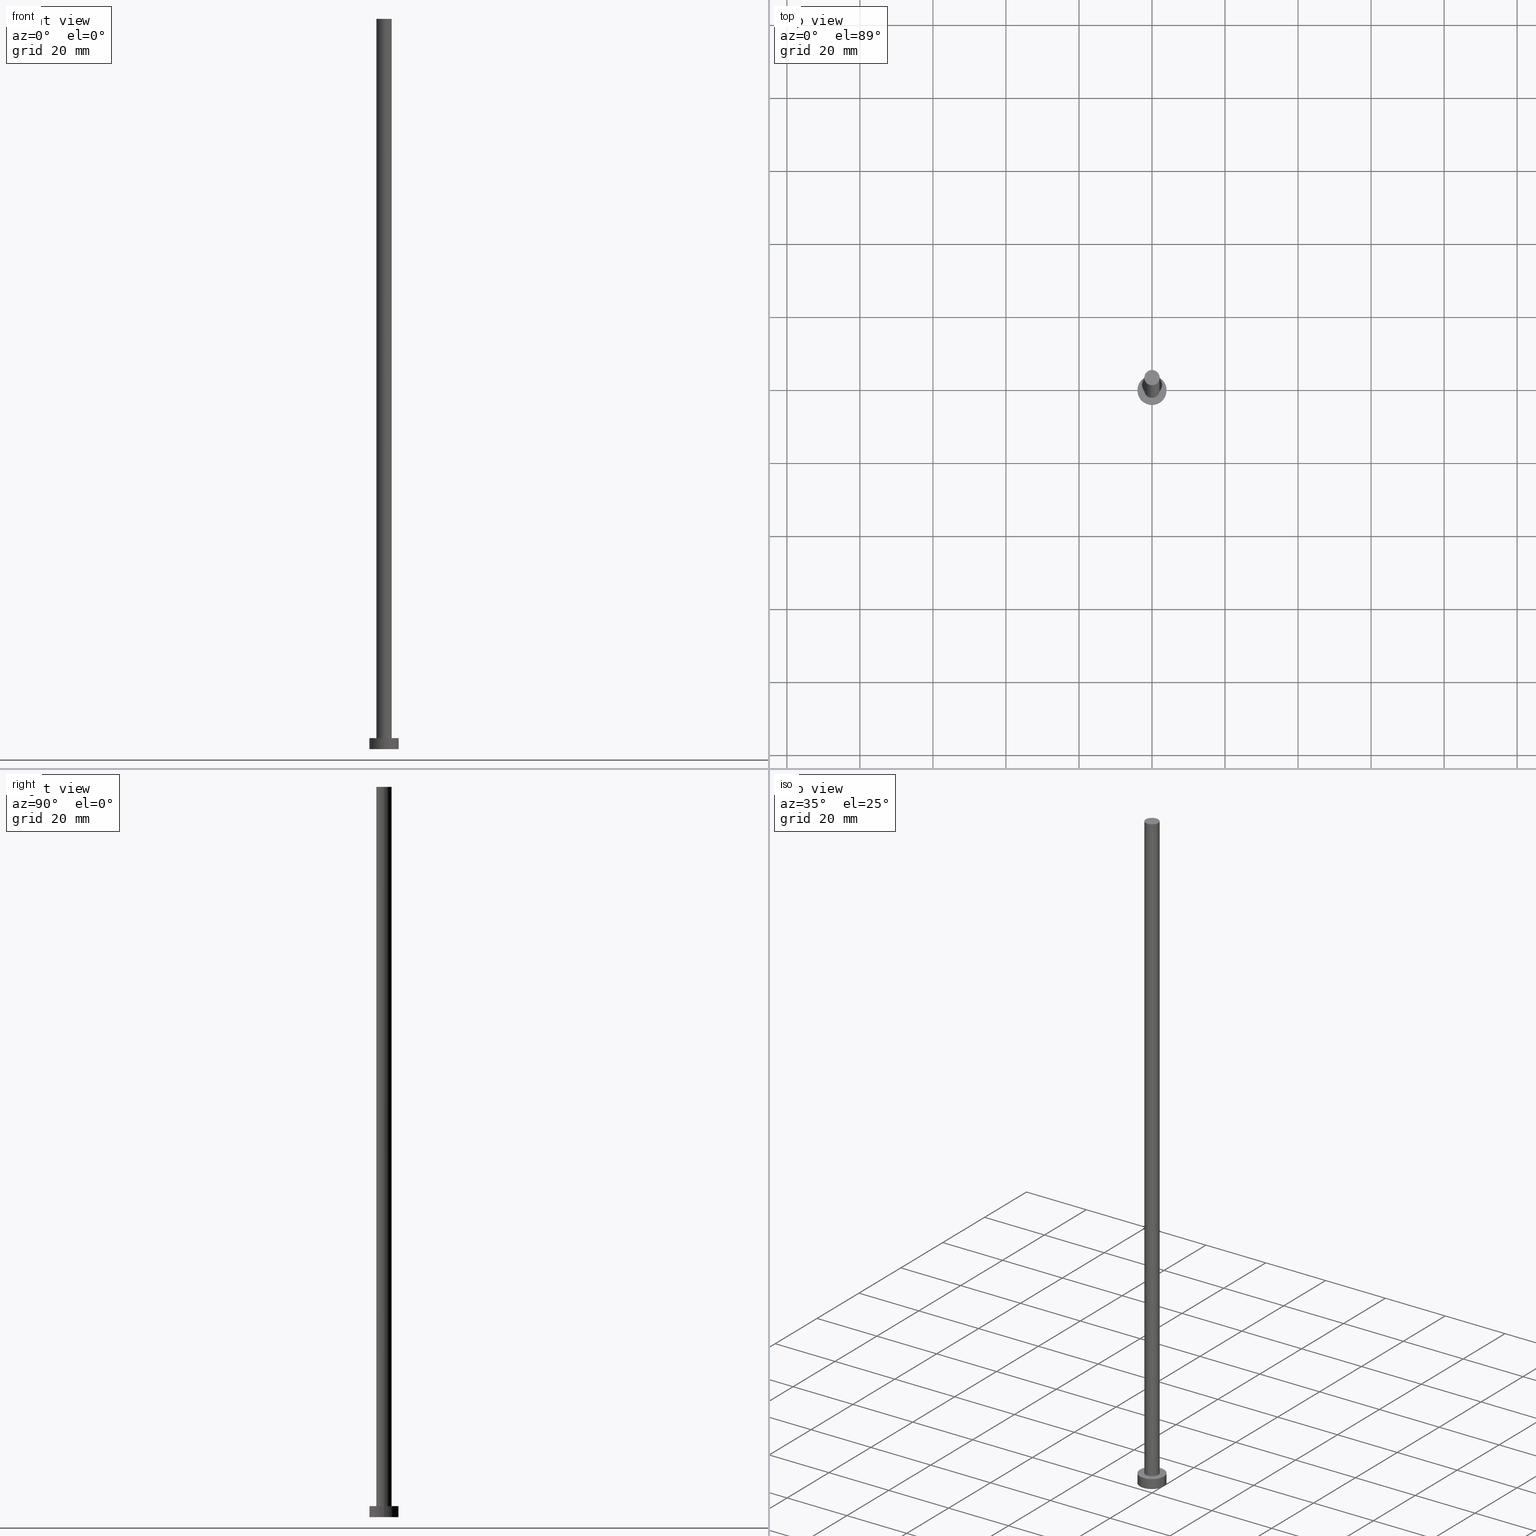
[diagram: canonical four-view strip — front | top / right | iso, engineering-drawing reading convention]
A machine part, canonical four-view strip (front | top / right | iso — engineering-drawing reading convention). The complete STEP part file that produces these views, byte-faithful:
ISO-10303-21;
HEADER;
FILE_DESCRIPTION (( 'STEP AP203' ),
    '1' );
FILE_NAME ('8169.STEP',
    '2023-02-13T13:56:14',
    ( '' ),
    ( '' ),
    'SwSTEP 2.0',
    'SolidWorks 2019',
    '' );
FILE_SCHEMA (( 'CONFIG_CONTROL_DESIGN' ));
ENDSEC;

DATA;
#1 = CARTESIAN_POINT ( 'NONE',  ( 0.000000000000000000, 0.000000000000000000, 200.0000000000000000 ) ) ;
#2 = CC_DESIGN_PERSON_AND_ORGANIZATION_ASSIGNMENT ( #145, #143, ( #218 ) ) ;
#3 = APPLICATION_PROTOCOL_DEFINITION ( 'international standard', 'config_control_design', 1994, #89 ) ;
#4 = APPLICATION_PROTOCOL_DEFINITION ( 'international standard', 'config_control_design', 1994, #95 ) ;
#5 = PERSON_AND_ORGANIZATION ( #32, #83 ) ;
#6 = AXIS2_PLACEMENT_3D ( 'NONE', #13, #173, #135 ) ;
#7 = EDGE_LOOP ( 'NONE', ( #38, #128, #46, #102 ) ) ;
#8 = PRODUCT_DEFINITION_SHAPE ( 'NONE', 'NONE',  #218 ) ;
#9 = EDGE_LOOP ( 'NONE', ( #67, #229 ) ) ;
#10 = ORIENTED_EDGE ( 'NONE', *, *, #57, .T. ) ;
#11 = DIRECTION ( 'NONE',  ( -0.000000000000000000, -0.000000000000000000, -1.000000000000000000 ) ) ;
#12 = EDGE_CURVE ( 'NONE', #186, #108, #168, .T. ) ;
#13 = CARTESIAN_POINT ( 'NONE',  ( 0.000000000000000000, 0.000000000000000000, 200.0000000000000000 ) ) ;
#14 = FACE_BOUND ( 'NONE', #230, .T. ) ;
#15 = CC_DESIGN_APPROVAL ( #115, ( #222 ) ) ;
#16 = FACE_OUTER_BOUND ( 'NONE', #88, .T. ) ;
#17 = CC_DESIGN_PERSON_AND_ORGANIZATION_ASSIGNMENT ( #53, #140, ( #222 ) ) ;
#18 = APPROVAL_ROLE ( '' ) ;
#19 =( LENGTH_UNIT ( ) NAMED_UNIT ( * ) SI_UNIT ( .MILLI., .METRE. ) );
#20 = CIRCLE ( 'NONE', #91, 4.000000000000000000 ) ;
#21 = APPROVAL_STATUS ( 'not_yet_approved' ) ;
#22 = LOCAL_TIME ( 14, 56, 14.00000000000000000, #37 ) ;
#23 = VERTEX_POINT ( 'NONE', #93 ) ;
#24 = ORIENTED_EDGE ( 'NONE', *, *, #54, .F. ) ;
#25 = CIRCLE ( 'NONE', #165, 2.100000000000000089 ) ;
#26 = ORIENTED_EDGE ( 'NONE', *, *, #244, .T. ) ;
#27 = UNCERTAINTY_MEASURE_WITH_UNIT (LENGTH_MEASURE( 1.000000000000000082E-05 ), #19, 'distance_accuracy_value', 'NONE');
#28 = VERTEX_POINT ( 'NONE', #245 ) ;
#29 = ADVANCED_FACE ( 'NONE', ( #114 ), #45, .T. ) ;
#30 = FACE_OUTER_BOUND ( 'NONE', #90, .T. ) ;
#31 = CARTESIAN_POINT ( 'NONE',  ( -4.000000000000000000, 0.000000000000000000, 0.000000000000000000 ) ) ;
#32 = PERSON ( 'NEUR�EN�', 'NEUR�EN�', 'NEUR�EN�', ('NEUR�EN�'), ('NEUR�EN�'), ('NEUR�EN�') ) ;
#33 = CARTESIAN_POINT ( 'NONE',  ( 2.100000000000000089, 2.571758278209441957E-16, 3.000000000000000000 ) ) ;
#34 = DATE_TIME_ROLE ( 'classification_date' ) ;
#35 = CARTESIAN_POINT ( 'NONE',  ( -4.000000000000000000, 0.000000000000000000, 3.000000000000000000 ) ) ;
#36 = VECTOR ( 'NONE', #49, 1000.000000000000000 ) ;
#37 = COORDINATED_UNIVERSAL_TIME_OFFSET ( 1, 0, .AHEAD. ) ;
#38 = ORIENTED_EDGE ( 'NONE', *, *, #57, .F. ) ;
#39 = AXIS2_PLACEMENT_3D ( 'NONE', #150, #78, #47 ) ;
#40 = DIRECTION ( 'NONE',  ( -0.000000000000000000, -0.000000000000000000, -1.000000000000000000 ) ) ;
#41 = APPROVAL_ROLE ( '' ) ;
#42 = CLOSED_SHELL ( 'NONE', ( #118, #192, #29, #149, #68, #130, #183 ) ) ;
#43 = VERTEX_POINT ( 'NONE', #98 ) ;
#44 = EDGE_LOOP ( 'NONE', ( #85, #92 ) ) ;
#45 = CYLINDRICAL_SURFACE ( 'NONE', #62, 4.000000000000000000 ) ;
#46 = ORIENTED_EDGE ( 'NONE', *, *, #12, .T. ) ;
#47 = DIRECTION ( 'NONE',  ( -1.000000000000000000, 0.000000000000000000, 0.000000000000000000 ) ) ;
#48 = APPROVAL_PERSON_ORGANIZATION ( #125, #206, #220 ) ;
#49 = DIRECTION ( 'NONE',  ( -0.000000000000000000, -0.000000000000000000, -1.000000000000000000 ) ) ;
#50 = DIRECTION ( 'NONE',  ( 0.000000000000000000, 0.000000000000000000, 1.000000000000000000 ) ) ;
#51 = COORDINATED_UNIVERSAL_TIME_OFFSET ( 1, 0, .AHEAD. ) ;
#52 = CARTESIAN_POINT ( 'NONE',  ( 0.000000000000000000, 0.000000000000000000, 3.000000000000000000 ) ) ;
#53 = PERSON_AND_ORGANIZATION ( #32, #83 ) ;
#54 = EDGE_CURVE ( 'NONE', #23, #131, #208, .T. ) ;
#55 = APPROVAL_DATE_TIME ( #157, #206 ) ;
#56 = DIRECTION ( 'NONE',  ( 1.000000000000000000, 0.000000000000000000, 0.000000000000000000 ) ) ;
#57 = EDGE_CURVE ( 'NONE', #248, #43, #253, .T. ) ;
#58 = COORDINATED_UNIVERSAL_TIME_OFFSET ( 1, 0, .AHEAD. ) ;
#59 = EDGE_CURVE ( 'NONE', #28, #131, #117, .T. ) ;
#60 = DATE_TIME_ROLE ( 'creation_date' ) ;
#61 =( NAMED_UNIT ( * ) SI_UNIT ( $, .STERADIAN. ) SOLID_ANGLE_UNIT ( ) );
#62 = AXIS2_PLACEMENT_3D ( 'NONE', #211, #11, #250 ) ;
#63 = ORIENTED_EDGE ( 'NONE', *, *, #12, .F. ) ;
#64 = CIRCLE ( 'NONE', #188, 4.000000000000000000 ) ;
#65 = EDGE_CURVE ( 'NONE', #43, #108, #20, .T. ) ;
#66 = ORIENTED_EDGE ( 'NONE', *, *, #147, .F. ) ;
#67 = ORIENTED_EDGE ( 'NONE', *, *, #147, .T. ) ;
#68 = ADVANCED_FACE ( 'NONE', ( #231 ), #104, .F. ) ;
#69 = VECTOR ( 'NONE', #204, 1000.000000000000000 ) ;
#70 =( GEOMETRIC_REPRESENTATION_CONTEXT ( 3 ) GLOBAL_UNCERTAINTY_ASSIGNED_CONTEXT ( ( #27 ) ) GLOBAL_UNIT_ASSIGNED_CONTEXT ( ( #19, #84, #61 ) ) REPRESENTATION_CONTEXT ( 'NONE', 'WORKASPACE' ) );
#71 = ORIENTED_EDGE ( 'NONE', *, *, #59, .T. ) ;
#72 = APPROVAL ( #120, 'NEUR�EN�' ) ;
#73 = EDGE_LOOP ( 'NONE', ( #247, #71, #242, #184 ) ) ;
#74 = DIRECTION ( 'NONE',  ( 1.000000000000000000, 0.000000000000000000, 0.000000000000000000 ) ) ;
#75 = CARTESIAN_POINT ( 'NONE',  ( 0.000000000000000000, 0.000000000000000000, 0.000000000000000000 ) ) ;
#76 = LOCAL_TIME ( 14, 56, 14.00000000000000000, #51 ) ;
#77 = CARTESIAN_POINT ( 'NONE',  ( 0.000000000000000000, 0.000000000000000000, 0.000000000000000000 ) ) ;
#78 = DIRECTION ( 'NONE',  ( -0.000000000000000000, -0.000000000000000000, -1.000000000000000000 ) ) ;
#79 = DATE_AND_TIME ( #101, #22 ) ;
#80 = DIRECTION ( 'NONE',  ( 0.000000000000000000, 0.000000000000000000, 1.000000000000000000 ) ) ;
#81 = DATE_AND_TIME ( #254, #87 ) ;
#82 = CALENDAR_DATE ( 2023, 13, 2 ) ;
#83 = ORGANIZATION ( 'NEUR�EN�', 'NEUR�EN�', '' ) ;
#84 =( NAMED_UNIT ( * ) PLANE_ANGLE_UNIT ( ) SI_UNIT ( $, .RADIAN. ) );
#85 = ORIENTED_EDGE ( 'NONE', *, *, #112, .F. ) ;
#86 = CC_DESIGN_DATE_AND_TIME_ASSIGNMENT ( #136, #34, ( #194 ) ) ;
#87 = LOCAL_TIME ( 14, 56, 14.00000000000000000, #235 ) ;
#88 = EDGE_LOOP ( 'NONE', ( #166, #10, #170, #63 ) ) ;
#89 = APPLICATION_CONTEXT ( 'configuration controlled 3d designs of mechanical parts and assemblies' ) ;
#90 = EDGE_LOOP ( 'NONE', ( #113, #66, #97, #169 ) ) ;
#91 = AXIS2_PLACEMENT_3D ( 'NONE', #75, #139, #172 ) ;
#92 = ORIENTED_EDGE ( 'NONE', *, *, #65, .F. ) ;
#93 = CARTESIAN_POINT ( 'NONE',  ( -2.100000000000000089, 0.000000000000000000, 3.000000000000000000 ) ) ;
#94 = CC_DESIGN_PERSON_AND_ORGANIZATION_ASSIGNMENT ( #215, #179, ( #194 ) ) ;
#95 = APPLICATION_CONTEXT ( 'configuration controlled 3d designs of mechanical parts and assemblies' ) ;
#96 = AXIS2_PLACEMENT_3D ( 'NONE', #1, #80, #137 ) ;
#97 = ORIENTED_EDGE ( 'NONE', *, *, #126, .T. ) ;
#98 = CARTESIAN_POINT ( 'NONE',  ( 4.000000000000000000, 4.898587196589412829E-16, 0.000000000000000000 ) ) ;
#99 = DIRECTION ( 'NONE',  ( -0.000000000000000000, -0.000000000000000000, -1.000000000000000000 ) ) ;
#100 = DIRECTION ( 'NONE',  ( -0.000000000000000000, -0.000000000000000000, -1.000000000000000000 ) ) ;
#101 = CALENDAR_DATE ( 2023, 13, 2 ) ;
#102 = ORIENTED_EDGE ( 'NONE', *, *, #112, .T. ) ;
#103 = CARTESIAN_POINT ( 'NONE',  ( 0.000000000000000000, 0.000000000000000000, 200.0000000000000000 ) ) ;
#104 = PLANE ( 'NONE',  #156 ) ;
#105 = APPROVAL_DATE_TIME ( #79, #115 ) ;
#106 = CARTESIAN_POINT ( 'NONE',  ( 0.000000000000000000, 0.000000000000000000, 3.000000000000000000 ) ) ;
#107 = DIRECTION ( 'NONE',  ( 1.000000000000000000, 0.000000000000000000, 0.000000000000000000 ) ) ;
#108 = VERTEX_POINT ( 'NONE', #31 ) ;
#109 = DATE_AND_TIME ( #201, #246 ) ;
#110 = AXIS2_PLACEMENT_3D ( 'NONE', #52, #193, #210 ) ;
#111 = CC_DESIGN_APPROVAL ( #206, ( #218 ) ) ;
#112 = EDGE_CURVE ( 'NONE', #108, #43, #64, .T. ) ;
#113 = ORIENTED_EDGE ( 'NONE', *, *, #59, .F. ) ;
#114 = FACE_OUTER_BOUND ( 'NONE', #7, .T. ) ;
#115 = APPROVAL ( #163, 'NEUR�EN�' ) ;
#116 = FACE_OUTER_BOUND ( 'NONE', #9, .T. ) ;
#117 = LINE ( 'NONE', #255, #134 ) ;
#118 = ADVANCED_FACE ( 'NONE', ( #133 ), #123, .T. ) ;
#119 = DIRECTION ( 'NONE',  ( 1.000000000000000000, 0.000000000000000000, 0.000000000000000000 ) ) ;
#120 = APPROVAL_STATUS ( 'not_yet_approved' ) ;
#121 = PLANE ( 'NONE',  #252 ) ;
#122 = CC_DESIGN_SECURITY_CLASSIFICATION ( #194, ( #222 ) ) ;
#123 = CYLINDRICAL_SURFACE ( 'NONE', #39, 2.100000000000000089 ) ;
#124 = DIRECTION ( 'NONE',  ( 0.000000000000000000, 0.000000000000000000, 1.000000000000000000 ) ) ;
#125 = PERSON_AND_ORGANIZATION ( #32, #83 ) ;
#126 = EDGE_CURVE ( 'NONE', #144, #23, #171, .T. ) ;
#127 = CIRCLE ( 'NONE', #129, 2.100000000000000089 ) ;
#128 = ORIENTED_EDGE ( 'NONE', *, *, #224, .F. ) ;
#129 = AXIS2_PLACEMENT_3D ( 'NONE', #189, #212, #74 ) ;
#130 = ADVANCED_FACE ( 'NONE', ( #30 ), #190, .T. ) ;
#131 = VERTEX_POINT ( 'NONE', #33 ) ;
#132 = CARTESIAN_POINT ( 'NONE',  ( 4.000000000000000000, 4.898587196589412829E-16, 3.000000000000000000 ) ) ;
#133 = FACE_OUTER_BOUND ( 'NONE', #73, .T. ) ;
#134 = VECTOR ( 'NONE', #100, 1000.000000000000000 ) ;
#135 = DIRECTION ( 'NONE',  ( -1.000000000000000000, 0.000000000000000000, 0.000000000000000000 ) ) ;
#136 = DATE_AND_TIME ( #233, #76 ) ;
#137 = DIRECTION ( 'NONE',  ( 1.000000000000000000, 0.000000000000000000, -0.000000000000000000 ) ) ;
#138 = PERSON_AND_ORGANIZATION_ROLE ( 'creator' ) ;
#139 = DIRECTION ( 'NONE',  ( 0.000000000000000000, 0.000000000000000000, 1.000000000000000000 ) ) ;
#140 = PERSON_AND_ORGANIZATION_ROLE ( 'design_supplier' ) ;
#141 = CC_DESIGN_PERSON_AND_ORGANIZATION_ASSIGNMENT ( #241, #180, ( #167 ) ) ;
#142 = APPROVAL_PERSON_ORGANIZATION ( #5, #115, #41 ) ;
#143 = PERSON_AND_ORGANIZATION_ROLE ( 'creator' ) ;
#144 = VERTEX_POINT ( 'NONE', #195 ) ;
#145 = PERSON_AND_ORGANIZATION ( #32, #83 ) ;
#146 = AXIS2_PLACEMENT_3D ( 'NONE', #158, #162, #243 ) ;
#147 = EDGE_CURVE ( 'NONE', #144, #28, #25, .T. ) ;
#148 = APPROVAL_PERSON_ORGANIZATION ( #196, #72, #18 ) ;
#149 = ADVANCED_FACE ( 'NONE', ( #14, #152 ), #121, .T. ) ;
#150 = CARTESIAN_POINT ( 'NONE',  ( 0.000000000000000000, 0.000000000000000000, 200.0000000000000000 ) ) ;
#151 = DIRECTION ( 'NONE',  ( 0.000000000000000000, 0.000000000000000000, 1.000000000000000000 ) ) ;
#152 = FACE_OUTER_BOUND ( 'NONE', #160, .T. ) ;
#153 = CARTESIAN_POINT ( 'NONE',  ( 0.000000000000000000, 0.000000000000000000, 3.000000000000000000 ) ) ;
#154 = DIRECTION ( 'NONE',  ( 1.000000000000000000, 0.000000000000000000, 0.000000000000000000 ) ) ;
#155 = APPROVAL_DATE_TIME ( #81, #72 ) ;
#156 = AXIS2_PLACEMENT_3D ( 'NONE', #77, #151, #213 ) ;
#157 = DATE_AND_TIME ( #82, #161 ) ;
#158 = CARTESIAN_POINT ( 'NONE',  ( 0.000000000000000000, 0.000000000000000000, 3.000000000000000000 ) ) ;
#159 = DIRECTION ( 'NONE',  ( 0.000000000000000000, 0.000000000000000000, 1.000000000000000000 ) ) ;
#160 = EDGE_LOOP ( 'NONE', ( #227, #26 ) ) ;
#161 = LOCAL_TIME ( 14, 56, 14.00000000000000000, #58 ) ;
#162 = DIRECTION ( 'NONE',  ( 0.000000000000000000, 0.000000000000000000, 1.000000000000000000 ) ) ;
#163 = APPROVAL_STATUS ( 'not_yet_approved' ) ;
#164 = PRODUCT_RELATED_PRODUCT_CATEGORY ( 'detail', '', ( #167 ) ) ;
#165 = AXIS2_PLACEMENT_3D ( 'NONE', #103, #249, #119 ) ;
#166 = ORIENTED_EDGE ( 'NONE', *, *, #244, .F. ) ;
#167 = PRODUCT ( '8169', '8169', '', ( #216 ) ) ;
#168 = LINE ( 'NONE', #223, #69 ) ;
#169 = ORIENTED_EDGE ( 'NONE', *, *, #54, .T. ) ;
#170 = ORIENTED_EDGE ( 'NONE', *, *, #65, .T. ) ;
#171 = LINE ( 'NONE', #207, #36 ) ;
#172 = DIRECTION ( 'NONE',  ( 1.000000000000000000, 0.000000000000000000, 0.000000000000000000 ) ) ;
#173 = DIRECTION ( 'NONE',  ( -0.000000000000000000, -0.000000000000000000, -1.000000000000000000 ) ) ;
#174 = CIRCLE ( 'NONE', #205, 4.000000000000000000 ) ;
#175 = SHAPE_DEFINITION_REPRESENTATION ( #8, #221 ) ;
#176 = CC_DESIGN_PERSON_AND_ORGANIZATION_ASSIGNMENT ( #238, #138, ( #222 ) ) ;
#177 = CYLINDRICAL_SURFACE ( 'NONE', #237, 4.000000000000000000 ) ;
#178 = CARTESIAN_POINT ( 'NONE',  ( 0.000000000000000000, 0.000000000000000000, 3.000000000000000000 ) ) ;
#179 = PERSON_AND_ORGANIZATION_ROLE ( 'classification_officer' ) ;
#180 = PERSON_AND_ORGANIZATION_ROLE ( 'design_owner' ) ;
#181 = CIRCLE ( 'NONE', #146, 4.000000000000000000 ) ;
#182 = DIRECTION ( 'NONE',  ( 1.000000000000000000, 0.000000000000000000, 0.000000000000000000 ) ) ;
#183 = ADVANCED_FACE ( 'NONE', ( #116 ), #234, .T. ) ;
#184 = ORIENTED_EDGE ( 'NONE', *, *, #126, .F. ) ;
#185 = EDGE_CURVE ( 'NONE', #28, #144, #127, .T. ) ;
#186 = VERTEX_POINT ( 'NONE', #35 ) ;
#187 = DESIGN_CONTEXT ( 'detailed design', #89, 'design' ) ;
#188 = AXIS2_PLACEMENT_3D ( 'NONE', #232, #236, #154 ) ;
#189 = CARTESIAN_POINT ( 'NONE',  ( 0.000000000000000000, 0.000000000000000000, 200.0000000000000000 ) ) ;
#190 = CYLINDRICAL_SURFACE ( 'NONE', #6, 2.100000000000000089 ) ;
#191 = DIRECTION ( 'NONE',  ( 1.000000000000000000, 0.000000000000000000, -0.000000000000000000 ) ) ;
#192 = ADVANCED_FACE ( 'NONE', ( #16 ), #177, .T. ) ;
#193 = DIRECTION ( 'NONE',  ( 0.000000000000000000, 0.000000000000000000, 1.000000000000000000 ) ) ;
#194 = SECURITY_CLASSIFICATION ( '', '', #197 ) ;
#195 = CARTESIAN_POINT ( 'NONE',  ( -2.100000000000000089, 0.000000000000000000, 200.0000000000000000 ) ) ;
#196 = PERSON_AND_ORGANIZATION ( #32, #83 ) ;
#197 = SECURITY_CLASSIFICATION_LEVEL ( 'unclassified' ) ;
#198 = DIRECTION ( 'NONE',  ( 0.000000000000000000, 0.000000000000000000, 1.000000000000000000 ) ) ;
#199 = CARTESIAN_POINT ( 'NONE',  ( 0.000000000000000000, 0.000000000000000000, 3.000000000000000000 ) ) ;
#200 = CC_DESIGN_DATE_AND_TIME_ASSIGNMENT ( #109, #60, ( #218 ) ) ;
#201 = CALENDAR_DATE ( 2023, 13, 2 ) ;
#202 = CARTESIAN_POINT ( 'NONE',  ( 4.000000000000000000, 4.898587196589412829E-16, 3.000000000000000000 ) ) ;
#203 = VECTOR ( 'NONE', #99, 1000.000000000000000 ) ;
#204 = DIRECTION ( 'NONE',  ( -0.000000000000000000, -0.000000000000000000, -1.000000000000000000 ) ) ;
#205 = AXIS2_PLACEMENT_3D ( 'NONE', #106, #124, #56 ) ;
#206 = APPROVAL ( #21, 'NEUR�EN�' ) ;
#207 = CARTESIAN_POINT ( 'NONE',  ( -2.100000000000000089, 0.000000000000000000, 200.0000000000000000 ) ) ;
#208 = CIRCLE ( 'NONE', #110, 2.100000000000000089 ) ;
#209 = AXIS2_PLACEMENT_3D ( 'NONE', #199, #198, #107 ) ;
#210 = DIRECTION ( 'NONE',  ( 1.000000000000000000, 0.000000000000000000, 0.000000000000000000 ) ) ;
#211 = CARTESIAN_POINT ( 'NONE',  ( 0.000000000000000000, 0.000000000000000000, 3.000000000000000000 ) ) ;
#212 = DIRECTION ( 'NONE',  ( 0.000000000000000000, 0.000000000000000000, 1.000000000000000000 ) ) ;
#213 = DIRECTION ( 'NONE',  ( 1.000000000000000000, 0.000000000000000000, -0.000000000000000000 ) ) ;
#214 = AXIS2_PLACEMENT_3D ( 'NONE', #239, #159, #182 ) ;
#215 = PERSON_AND_ORGANIZATION ( #32, #83 ) ;
#216 = MECHANICAL_CONTEXT ( 'NONE', #95, 'mechanical' ) ;
#217 = ORIENTED_EDGE ( 'NONE', *, *, #228, .F. ) ;
#218 = PRODUCT_DEFINITION ( 'NEZN�M�', '', #222, #187 ) ;
#219 = COORDINATED_UNIVERSAL_TIME_OFFSET ( 1, 0, .AHEAD. ) ;
#220 = APPROVAL_ROLE ( '' ) ;
#221 = ADVANCED_BREP_SHAPE_REPRESENTATION ( '8169', ( #251, #214 ), #70 ) ;
#222 = PRODUCT_DEFINITION_FORMATION_WITH_SPECIFIED_SOURCE ( 'LIBOVOLN�', '', #167, .NOT_KNOWN. ) ;
#223 = CARTESIAN_POINT ( 'NONE',  ( -4.000000000000000000, 0.000000000000000000, 3.000000000000000000 ) ) ;
#224 = EDGE_CURVE ( 'NONE', #186, #248, #174, .T. ) ;
#225 = CIRCLE ( 'NONE', #209, 2.100000000000000089 ) ;
#226 = CC_DESIGN_APPROVAL ( #72, ( #194 ) ) ;
#227 = ORIENTED_EDGE ( 'NONE', *, *, #224, .T. ) ;
#228 = EDGE_CURVE ( 'NONE', #131, #23, #225, .T. ) ;
#229 = ORIENTED_EDGE ( 'NONE', *, *, #185, .T. ) ;
#230 = EDGE_LOOP ( 'NONE', ( #24, #217 ) ) ;
#231 = FACE_OUTER_BOUND ( 'NONE', #44, .T. ) ;
#232 = CARTESIAN_POINT ( 'NONE',  ( 0.000000000000000000, 0.000000000000000000, 0.000000000000000000 ) ) ;
#233 = CALENDAR_DATE ( 2023, 13, 2 ) ;
#234 = PLANE ( 'NONE',  #96 ) ;
#235 = COORDINATED_UNIVERSAL_TIME_OFFSET ( 1, 0, .AHEAD. ) ;
#236 = DIRECTION ( 'NONE',  ( 0.000000000000000000, 0.000000000000000000, 1.000000000000000000 ) ) ;
#237 = AXIS2_PLACEMENT_3D ( 'NONE', #153, #40, #240 ) ;
#238 = PERSON_AND_ORGANIZATION ( #32, #83 ) ;
#239 = CARTESIAN_POINT ( 'NONE',  ( 0.000000000000000000, 0.000000000000000000, 0.000000000000000000 ) ) ;
#240 = DIRECTION ( 'NONE',  ( -1.000000000000000000, 0.000000000000000000, 0.000000000000000000 ) ) ;
#241 = PERSON_AND_ORGANIZATION ( #32, #83 ) ;
#242 = ORIENTED_EDGE ( 'NONE', *, *, #228, .T. ) ;
#243 = DIRECTION ( 'NONE',  ( 1.000000000000000000, 0.000000000000000000, 0.000000000000000000 ) ) ;
#244 = EDGE_CURVE ( 'NONE', #248, #186, #181, .T. ) ;
#245 = CARTESIAN_POINT ( 'NONE',  ( 2.100000000000000089, 2.571758278209441957E-16, 200.0000000000000000 ) ) ;
#246 = LOCAL_TIME ( 14, 56, 14.00000000000000000, #219 ) ;
#247 = ORIENTED_EDGE ( 'NONE', *, *, #185, .F. ) ;
#248 = VERTEX_POINT ( 'NONE', #202 ) ;
#249 = DIRECTION ( 'NONE',  ( 0.000000000000000000, 0.000000000000000000, 1.000000000000000000 ) ) ;
#250 = DIRECTION ( 'NONE',  ( -1.000000000000000000, 0.000000000000000000, 0.000000000000000000 ) ) ;
#251 = MANIFOLD_SOLID_BREP ( 'P�idat vysunut�m3', #42 ) ;
#252 = AXIS2_PLACEMENT_3D ( 'NONE', #178, #50, #191 ) ;
#253 = LINE ( 'NONE', #132, #203 ) ;
#254 = CALENDAR_DATE ( 2023, 13, 2 ) ;
#255 = CARTESIAN_POINT ( 'NONE',  ( 2.100000000000000089, 2.571758278209441957E-16, 200.0000000000000000 ) ) ;
ENDSEC;
END-ISO-10303-21;
